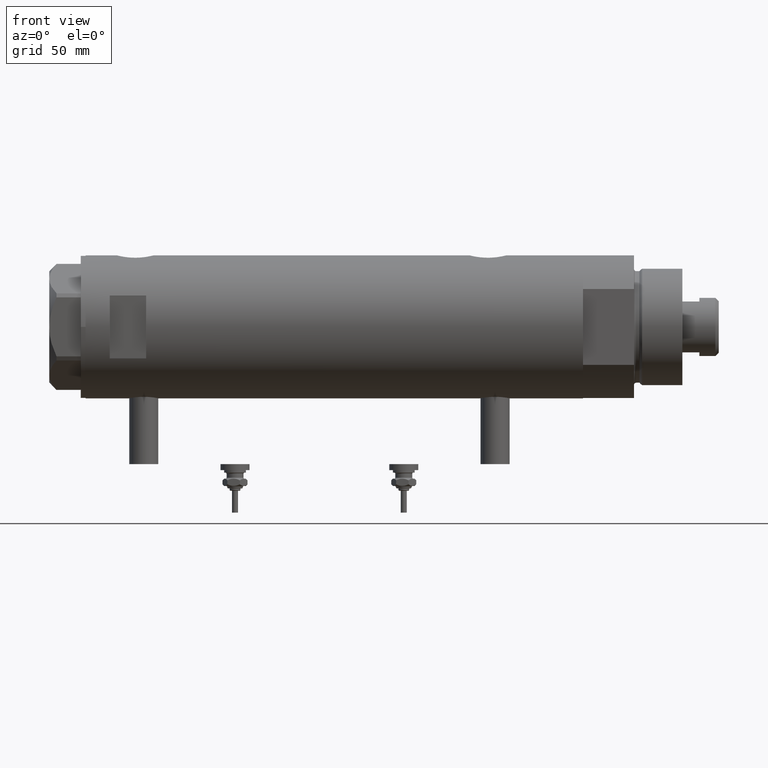
[diagram: clean part render]
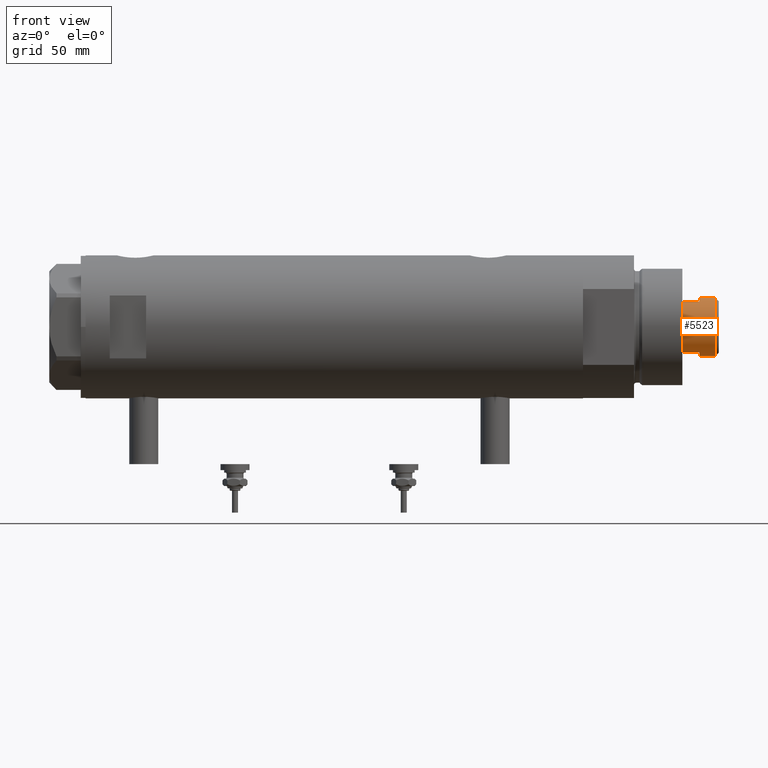
[diagram: same view with one face highlighted and labeled with its STEP entity id]
A machine part, front view. The second image highlights one B-rep face of the part: STEP entity #5523.
In plain terms, the highlighted cylindrical surface (edge-blend (fillet) strip) has radius 12 mm, axis along (-1, -0, 0).
Its self-contained STEP definition (entity closure, byte-faithful):
#91 = CIRCLE ( 'NONE', #5745, 12.00000000000000000 ) ;
#275 = DIRECTION ( 'NONE',  ( -0.000000000000000000, -0.000000000000000000, -1.000000000000000000 ) ) ;
#287 = ORIENTED_EDGE ( 'NONE', *, *, #5862, .T. ) ;
#304 = DIRECTION ( 'NONE',  ( 0.000000000000000000, 0.000000000000000000, 1.000000000000000000 ) ) ;
#371 = ORIENTED_EDGE ( 'NONE', *, *, #2121, .T. ) ;
#750 = CARTESIAN_POINT ( 'NONE',  ( -12.00000000000000000, 0.000000000000000000, 236.3000000000000682 ) ) ;
#929 = ORIENTED_EDGE ( 'NONE', *, *, #2907, .F. ) ;
#933 = VECTOR ( 'NONE', #2511, 1000.000000000000000 ) ;
#1171 = AXIS2_PLACEMENT_3D ( 'NONE', #2990, #3400, #2040 ) ;
#1222 = LINE ( 'NONE', #3495, #3615 ) ;
#1290 = LINE ( 'NONE', #4826, #4665 ) ;
#1384 = CARTESIAN_POINT ( 'NONE',  ( -10.48861764008966091, -5.830000000000242544, 222.7000000000000171 ) ) ;
#1396 = EDGE_CURVE ( 'NONE', #2485, #3835, #5446, .T. ) ;
#1455 = VERTEX_POINT ( 'NONE', #4363 ) ;
#1481 = EDGE_CURVE ( 'NONE', #1455, #3835, #1608, .T. ) ;
#1543 = CIRCLE ( 'NONE', #5265, 12.00000000000000178 ) ;
#1575 = FACE_OUTER_BOUND ( 'NONE', #1968, .T. ) ;
#1608 = LINE ( 'NONE', #4850, #5542 ) ;
#1624 = EDGE_CURVE ( 'NONE', #5602, #4239, #1222, .T. ) ;
#1776 = DIRECTION ( 'NONE',  ( 1.000000000000000000, 0.000000000000000000, 0.000000000000000000 ) ) ;
#1961 = ORIENTED_EDGE ( 'NONE', *, *, #5607, .T. ) ;
#1968 = EDGE_LOOP ( 'NONE', ( #929, #371, #4303, #287, #4483, #3366, #2595, #1961 ) ) ;
#2040 = DIRECTION ( 'NONE',  ( -1.000000000000000000, 0.000000000000000000, 0.000000000000000000 ) ) ;
#2092 = CYLINDRICAL_SURFACE ( 'NONE', #1171, 12.00000000000000000 ) ;
#2121 = EDGE_CURVE ( 'NONE', #5285, #5602, #91, .T. ) ;
#2126 = CARTESIAN_POINT ( 'NONE',  ( 12.00000000000000355, 1.469576158976824342E-15, 229.7000000000000171 ) ) ;
#2355 = DIRECTION ( 'NONE',  ( 0.000000000000000000, 0.000000000000000000, -1.000000000000000000 ) ) ;
#2359 = DIRECTION ( 'NONE',  ( 1.000000000000000000, 0.000000000000000000, 0.000000000000000000 ) ) ;
#2455 = CARTESIAN_POINT ( 'NONE',  ( 0.000000000000000000, 0.000000000000000000, 229.7000000000000171 ) ) ;
#2485 = VERTEX_POINT ( 'NONE', #1384 ) ;
#2511 = DIRECTION ( 'NONE',  ( -0.000000000000000000, -0.000000000000000000, -1.000000000000000000 ) ) ;
#2531 = DIRECTION ( 'NONE',  ( -0.000000000000000000, -0.000000000000000000, -1.000000000000000000 ) ) ;
#2587 = AXIS2_PLACEMENT_3D ( 'NONE', #4237, #3727, #2359 ) ;
#2595 = ORIENTED_EDGE ( 'NONE', *, *, #1481, .F. ) ;
#2818 = DIRECTION ( 'NONE',  ( 1.000000000000000000, 0.000000000000000000, 0.000000000000000000 ) ) ;
#2907 = EDGE_CURVE ( 'NONE', #5285, #5547, #5235, .T. ) ;
#2990 = CARTESIAN_POINT ( 'NONE',  ( 0.000000000000000000, 0.000000000000000000, 229.7000000000000171 ) ) ;
#3224 = CARTESIAN_POINT ( 'NONE',  ( -10.48861764008966091, -5.830000000000003624, 229.7000000000000171 ) ) ;
#3270 = CARTESIAN_POINT ( 'NONE',  ( 0.000000000000000000, 0.000000000000000000, 236.3000000000000682 ) ) ;
#3366 = ORIENTED_EDGE ( 'NONE', *, *, #1396, .T. ) ;
#3400 = DIRECTION ( 'NONE',  ( -0.000000000000000000, -0.000000000000000000, -1.000000000000000000 ) ) ;
#3495 = CARTESIAN_POINT ( 'NONE',  ( -12.00000000000000000, 0.000000000000000000, 229.7000000000000171 ) ) ;
#3615 = VECTOR ( 'NONE', #5337, 1000.000000000000000 ) ;
#3727 = DIRECTION ( 'NONE',  ( 0.000000000000000000, 0.000000000000000000, 1.000000000000000000 ) ) ;
#3835 = VERTEX_POINT ( 'NONE', #4538 ) ;
#3877 = VERTEX_POINT ( 'NONE', #3224 ) ;
#3937 = DIRECTION ( 'NONE',  ( 1.000000000000000000, 0.000000000000000000, 0.000000000000000000 ) ) ;
#4010 = CARTESIAN_POINT ( 'NONE',  ( 12.00000000000000000, 1.469576158976823947E-15, 236.3000000000000682 ) ) ;
#4191 = CARTESIAN_POINT ( 'NONE',  ( 0.000000000000000000, 0.000000000000000000, 222.7000000000000171 ) ) ;
#4237 = CARTESIAN_POINT ( 'NONE',  ( 0.000000000000000000, 0.000000000000000000, 229.7000000000000171 ) ) ;
#4239 = VERTEX_POINT ( 'NONE', #5874 ) ;
#4303 = ORIENTED_EDGE ( 'NONE', *, *, #1624, .T. ) ;
#4363 = CARTESIAN_POINT ( 'NONE',  ( 10.48861764008966446, -5.829999999999997407, 229.7000000000000171 ) ) ;
#4483 = ORIENTED_EDGE ( 'NONE', *, *, #4671, .T. ) ;
#4538 = CARTESIAN_POINT ( 'NONE',  ( 10.48861764008966269, -5.830000000000238991, 222.7000000000000171 ) ) ;
#4665 = VECTOR ( 'NONE', #2531, 1000.000000000000000 ) ;
#4671 = EDGE_CURVE ( 'NONE', #3877, #2485, #1290, .T. ) ;
#4725 = DIRECTION ( 'NONE',  ( 0.000000000000000000, 0.000000000000000000, 1.000000000000000000 ) ) ;
#4826 = CARTESIAN_POINT ( 'NONE',  ( -10.48861764008966091, -5.830000000000000959, 229.7000000000000171 ) ) ;
#4850 = CARTESIAN_POINT ( 'NONE',  ( 10.48861764008966446, -5.829999999999997407, 229.7000000000000171 ) ) ;
#4982 = CIRCLE ( 'NONE', #2587, 12.00000000000000178 ) ;
#5235 = LINE ( 'NONE', #5835, #933 ) ;
#5265 = AXIS2_PLACEMENT_3D ( 'NONE', #2455, #304, #3937 ) ;
#5285 = VERTEX_POINT ( 'NONE', #4010 ) ;
#5337 = DIRECTION ( 'NONE',  ( -0.000000000000000000, -0.000000000000000000, -1.000000000000000000 ) ) ;
#5446 = CIRCLE ( 'NONE', #5824, 12.00000000000000000 ) ;
#5523 = ADVANCED_FACE ( 'NONE', ( #1575 ), #2092, .T. ) ;
#5542 = VECTOR ( 'NONE', #275, 1000.000000000000000 ) ;
#5547 = VERTEX_POINT ( 'NONE', #2126 ) ;
#5602 = VERTEX_POINT ( 'NONE', #750 ) ;
#5607 = EDGE_CURVE ( 'NONE', #1455, #5547, #1543, .T. ) ;
#5745 = AXIS2_PLACEMENT_3D ( 'NONE', #3270, #2355, #1776 ) ;
#5824 = AXIS2_PLACEMENT_3D ( 'NONE', #4191, #4725, #2818 ) ;
#5835 = CARTESIAN_POINT ( 'NONE',  ( 12.00000000000000000, 1.469576158976823947E-15, 229.7000000000000171 ) ) ;
#5862 = EDGE_CURVE ( 'NONE', #4239, #3877, #4982, .T. ) ;
#5874 = CARTESIAN_POINT ( 'NONE',  ( -12.00000000000000355, 0.000000000000000000, 229.7000000000000171 ) ) ;